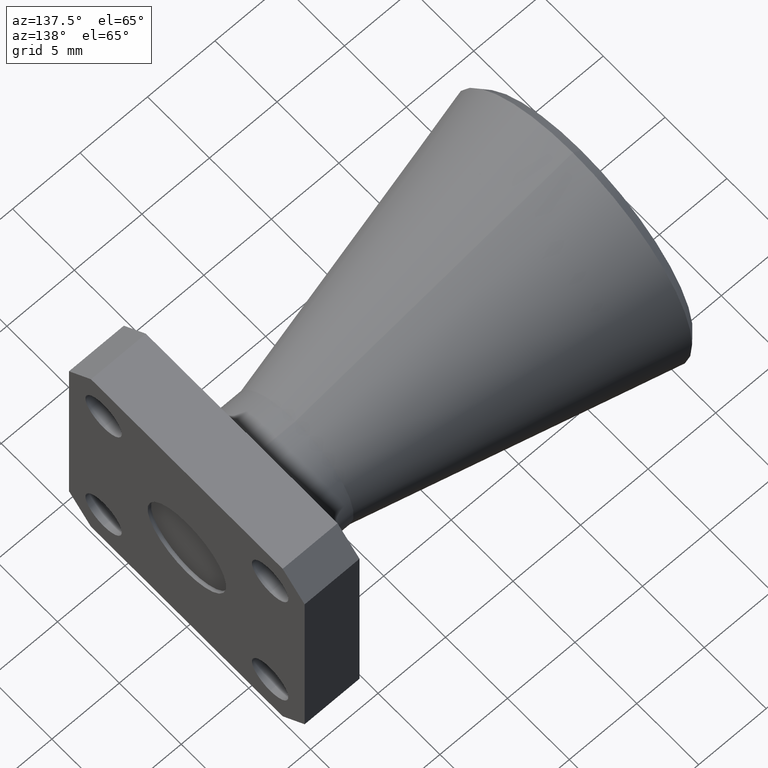
[diagram: clean part render]
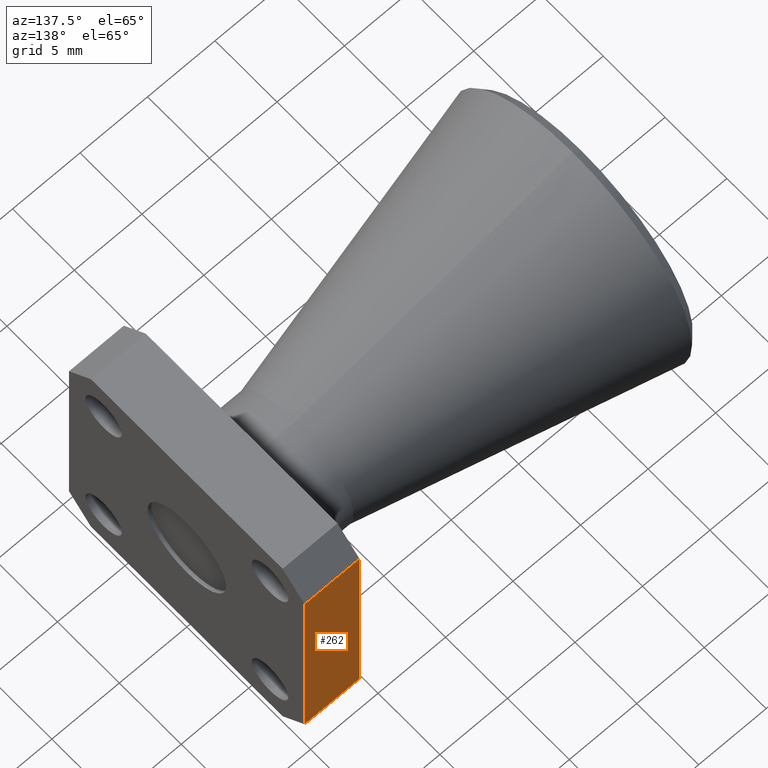
[diagram: same view with one face highlighted and labeled with its STEP entity id]
A machine part, auxiliary view. The second image highlights one B-rep face of the part: STEP entity #262.
In plain terms, the highlighted planar face has unit normal (-0, 1, 0).
Its self-contained STEP definition (entity closure, byte-faithful):
#8 = CARTESIAN_POINT ( 'NONE',  ( 0.0000000000000000000, 0.3750000000000000600, 0.3750000000000001100 ) ) ;
#9 = CARTESIAN_POINT ( 'NONE',  ( -0.1600000000000000000, 0.3750000000000000600, -0.3049999999999993300 ) ) ;
#51 = LINE ( 'NONE', #8, #72 ) ;
#72 = VECTOR ( 'NONE', #217, 39.37007874015748100 ) ;
#103 = DIRECTION ( 'NONE',  ( 0.0000000000000000000, -0.0000000000000000000, 1.000000000000000000 ) ) ;
#137 = VERTEX_POINT ( 'NONE', #150 ) ;
#150 = CARTESIAN_POINT ( 'NONE',  ( 0.0000000000000000000, 0.3750000000000000600, -0.3049999999999993300 ) ) ;
#168 = EDGE_CURVE ( 'NONE', #137, #745, #51, .T. ) ;
#193 = VECTOR ( 'NONE', #415, 39.37007874015748100 ) ;
#206 = LINE ( 'NONE', #492, #800 ) ;
#208 = CARTESIAN_POINT ( 'NONE',  ( -0.1600000000000000000, 0.3750000000000000600, 0.3050000000000000500 ) ) ;
#217 = DIRECTION ( 'NONE',  ( -0.0000000000000000000, -0.0000000000000000000, 1.000000000000000000 ) ) ;
#232 = LINE ( 'NONE', #208, #193 ) ;
#262 = ADVANCED_FACE ( 'NONE', ( #574 ), #502, .T. ) ;
#276 = CARTESIAN_POINT ( 'NONE',  ( -0.1600000000000000000, 0.3750000000000000600, 0.3750000000000001100 ) ) ;
#304 = EDGE_LOOP ( 'NONE', ( #462, #608, #582, #815 ) ) ;
#339 = DIRECTION ( 'NONE',  ( -0.0000000000000000000, -0.0000000000000000000, 1.000000000000000000 ) ) ;
#383 = CARTESIAN_POINT ( 'NONE',  ( -0.1600000000000000000, 0.3750000000000000600, 0.3750000000000001100 ) ) ;
#415 = DIRECTION ( 'NONE',  ( 1.000000000000000000, 0.0000000000000000000, 0.0000000000000000000 ) ) ;
#424 = DIRECTION ( 'NONE',  ( -1.000000000000000000, 0.0000000000000000000, 0.0000000000000000000 ) ) ;
#462 = ORIENTED_EDGE ( 'NONE', *, *, #168, .F. ) ;
#477 = CARTESIAN_POINT ( 'NONE',  ( -0.1600000000000000000, 0.3750000000000000600, 0.3050000000000000500 ) ) ;
#492 = CARTESIAN_POINT ( 'NONE',  ( -0.1600000000000000000, 0.3750000000000000600, -0.3049999999999996000 ) ) ;
#500 = AXIS2_PLACEMENT_3D ( 'NONE', #383, #727, #103 ) ;
#502 = PLANE ( 'NONE',  #500 ) ;
#574 = FACE_OUTER_BOUND ( 'NONE', #304, .T. ) ;
#582 = ORIENTED_EDGE ( 'NONE', *, *, #666, .T. ) ;
#597 = VERTEX_POINT ( 'NONE', #477 ) ;
#608 = ORIENTED_EDGE ( 'NONE', *, *, #696, .T. ) ;
#618 = VECTOR ( 'NONE', #339, 39.37007874015748100 ) ;
#666 = EDGE_CURVE ( 'NONE', #870, #597, #840, .T. ) ;
#696 = EDGE_CURVE ( 'NONE', #137, #870, #206, .T. ) ;
#725 = EDGE_CURVE ( 'NONE', #597, #745, #232, .T. ) ;
#727 = DIRECTION ( 'NONE',  ( -0.0000000000000000000, 1.000000000000000000, 0.0000000000000000000 ) ) ;
#745 = VERTEX_POINT ( 'NONE', #835 ) ;
#800 = VECTOR ( 'NONE', #424, 39.37007874015748100 ) ;
#815 = ORIENTED_EDGE ( 'NONE', *, *, #725, .T. ) ;
#835 = CARTESIAN_POINT ( 'NONE',  ( 0.0000000000000000000, 0.3750000000000000600, 0.3050000000000000500 ) ) ;
#840 = LINE ( 'NONE', #276, #618 ) ;
#870 = VERTEX_POINT ( 'NONE', #9 ) ;